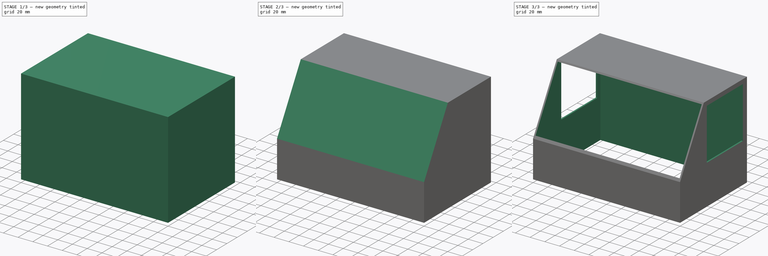
[diagram: build sequence overview — one tinted view per stage of 3, left to right]
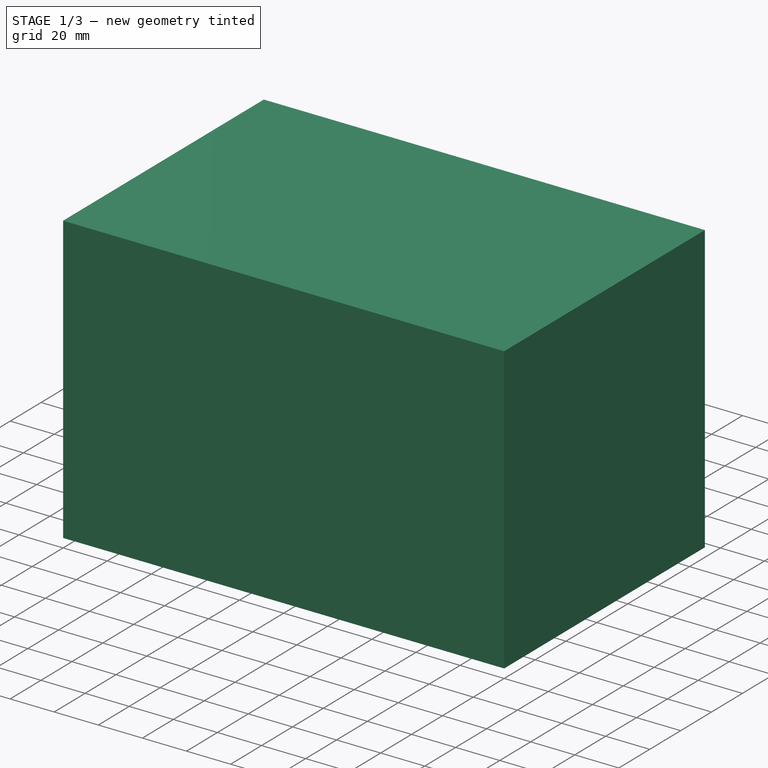
[diagram: stage 1 of 3 — iso view after this stage's code; geometry added in this stage tinted green]
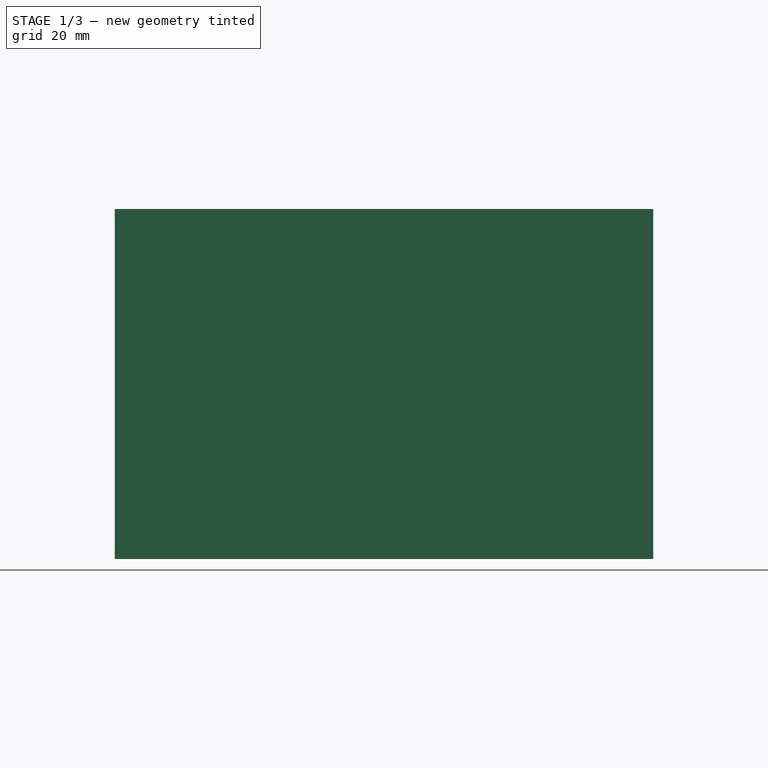
[diagram: stage 1 of 3 — front view after this stage's code; geometry added in this stage tinted green]
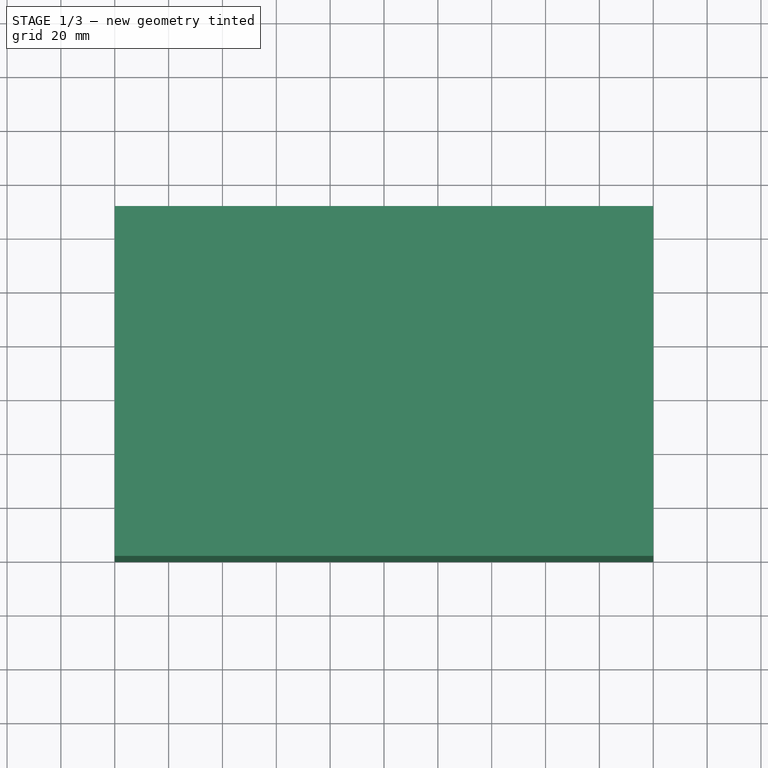
[diagram: stage 1 of 3 — top view after this stage's code; geometry added in this stage tinted green]
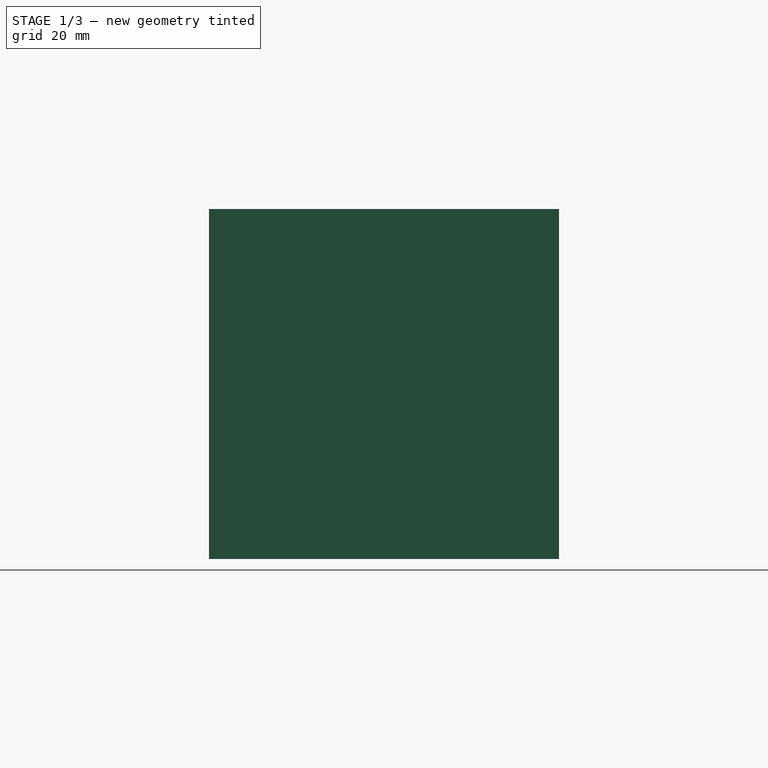
[diagram: stage 1 of 3 — right view after this stage's code; geometry added in this stage tinted green]
FCSTD DOCUMENT  (FreeCAD 0.18R16131 (Git))
Label: Fahrerkabine
License: All rights reserved
LicenseURL: http://en.wikipedia.org/wiki/All_rights_reserved
objects: PartDesign::SubtractiveBox×3, Spreadsheet::Sheet×1, Part::Box×1, PartDesign::FeatureBase×1, PartDesign::Body×1, App::Part×1, Sketcher::SketchObject×1
note: 10 computed .brp shape members not serialized (recipe doc carries the construction recipe); baked Part::Feature solids carry a one-line shape summary decoded from their .brp

FEATURE [Spreadsheet::Sheet] Spreadsheet
  cells = D1=Schlitze; A2=width; B2=130; D2=width; E2=3.1; A3=length; B3=200; D3=length; E3=20; A4=Height; B4=130
FEATURE [Part::Box] Box  label="Cube"
  AttacherType = Attacher::AttachEngine3D
  Height = 130
  Length = 200
  Width = 130
FEATURE [PartDesign::FeatureBase] BaseFeature
  BaseFeature = -> Box
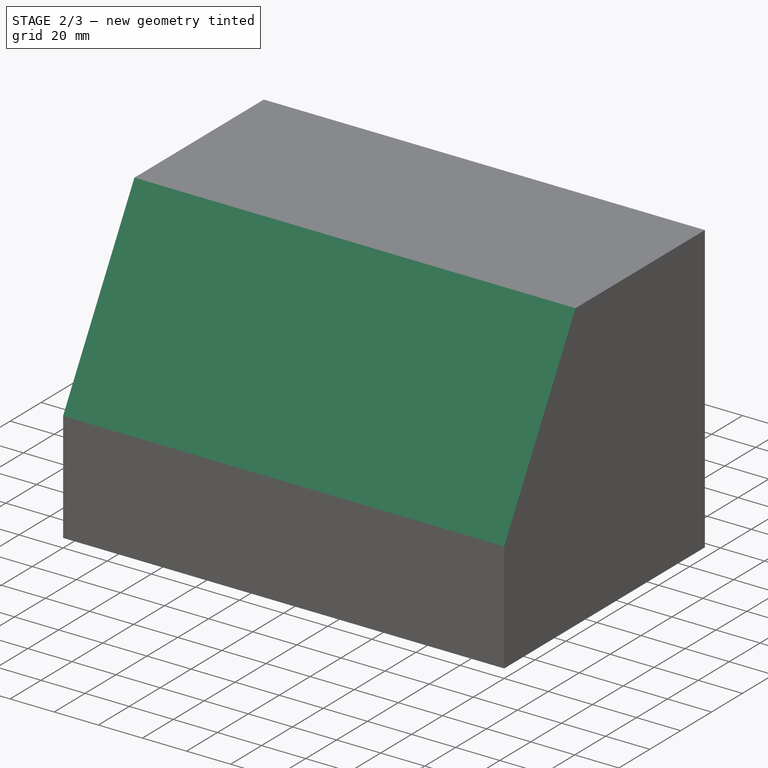
[diagram: stage 2 of 3 — iso view after this stage's code; geometry added in this stage tinted green]
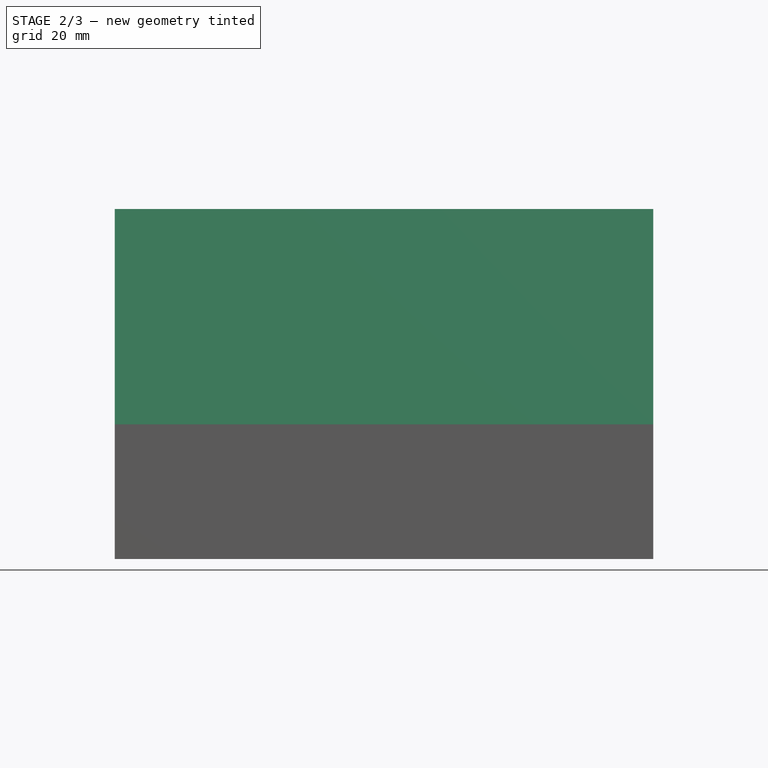
[diagram: stage 2 of 3 — front view after this stage's code; geometry added in this stage tinted green]
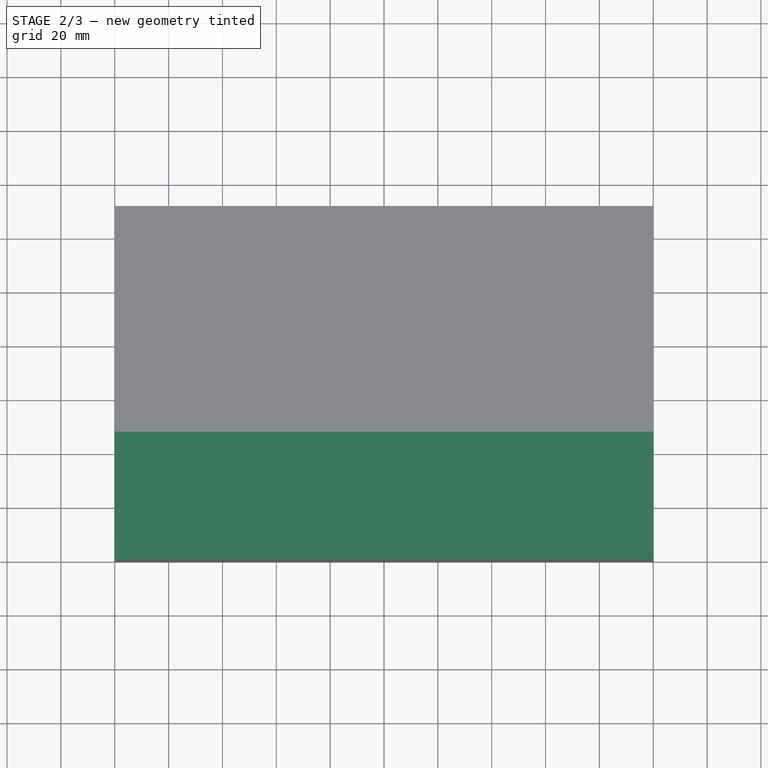
[diagram: stage 2 of 3 — top view after this stage's code; geometry added in this stage tinted green]
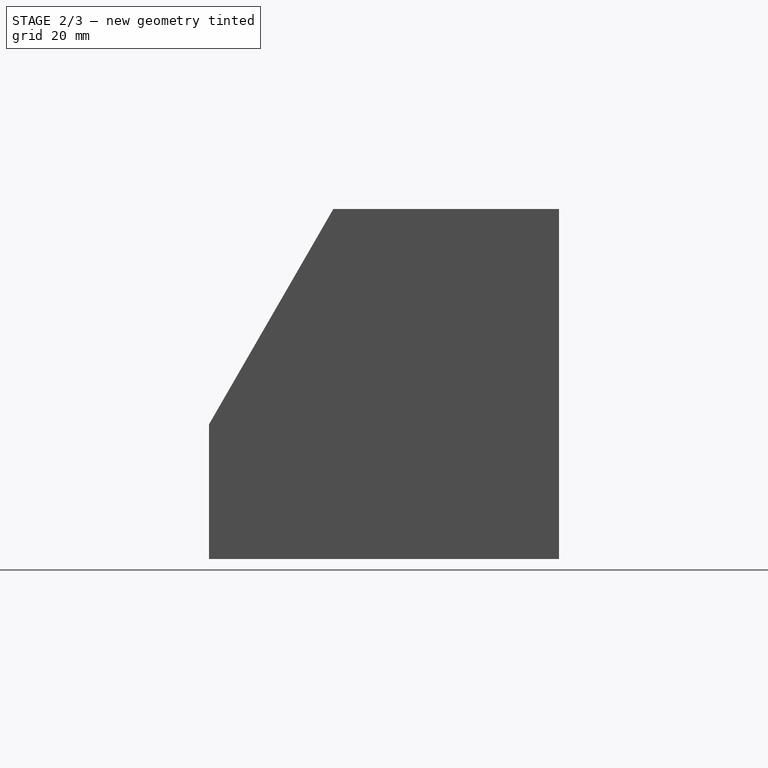
[diagram: stage 2 of 3 — right view after this stage's code; geometry added in this stage tinted green]
FEATURE [PartDesign::SubtractiveBox] Box001
  AttacherType = Attacher::AttachEngine3D
  AttachmentOffset = pos=(0,50,0) rot=(-1,0,0;0.523599rad)
  BaseFeature = -> BaseFeature
  Height = 40
  Length = 200
  MapMode = 5
  Placement = pos=(0,1.11e-14,50) rot=(1,0,0;1.0472rad)
  Support = -> [BaseFeature]
  Width = 150
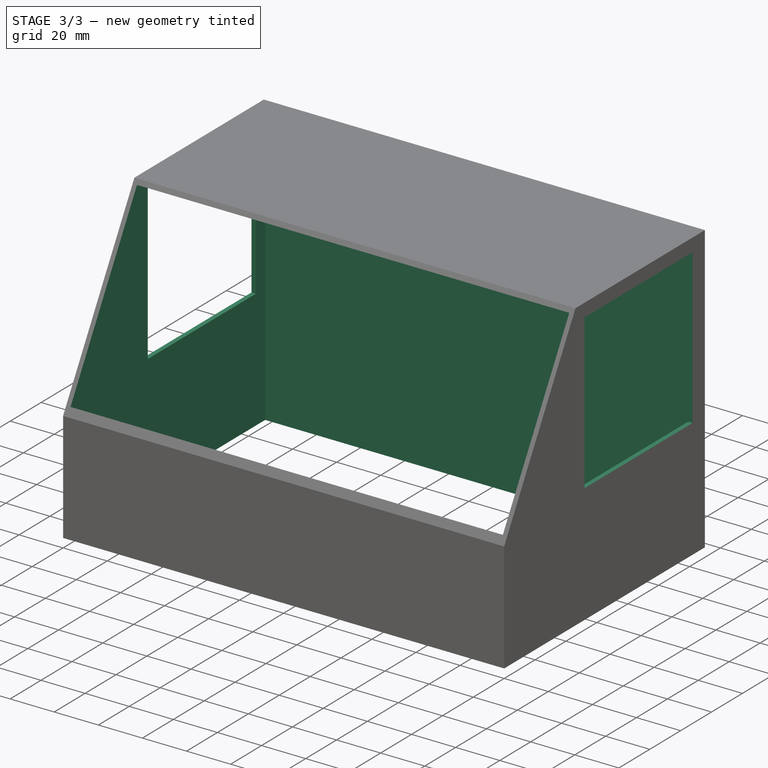
[diagram: stage 3 of 3 — iso view after this stage's code; geometry added in this stage tinted green]
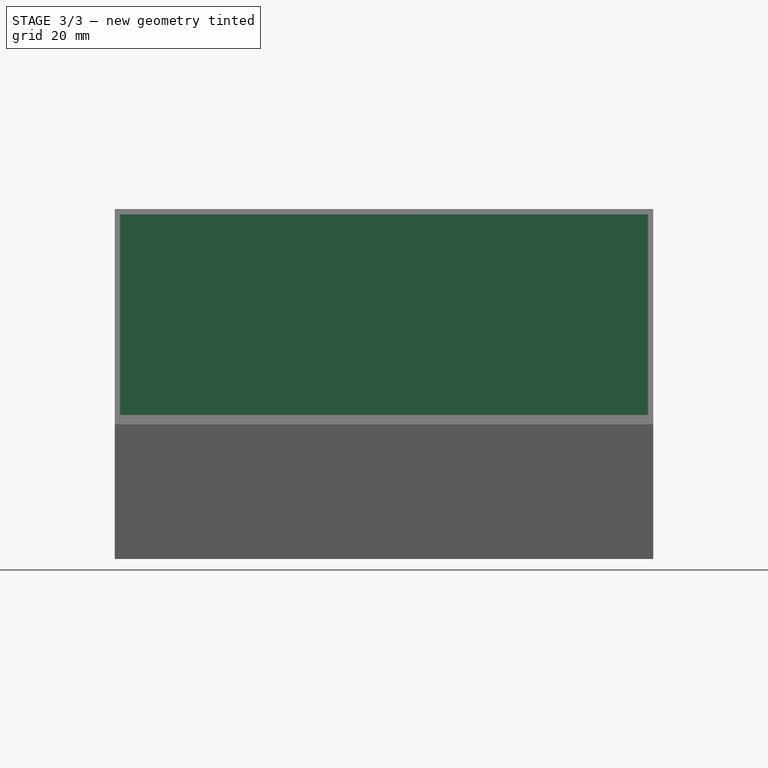
[diagram: stage 3 of 3 — front view after this stage's code; geometry added in this stage tinted green]
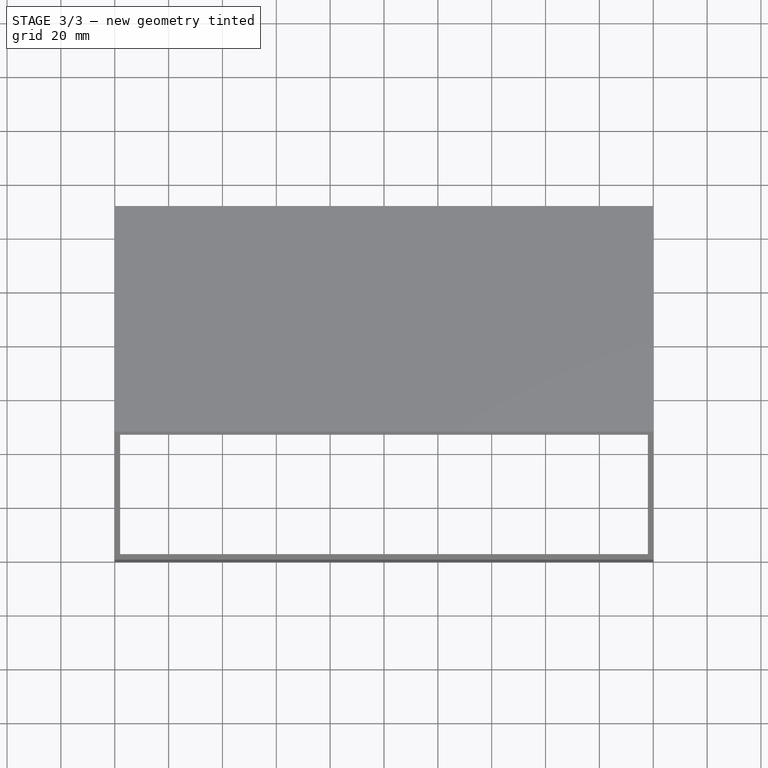
[diagram: stage 3 of 3 — top view after this stage's code; geometry added in this stage tinted green]
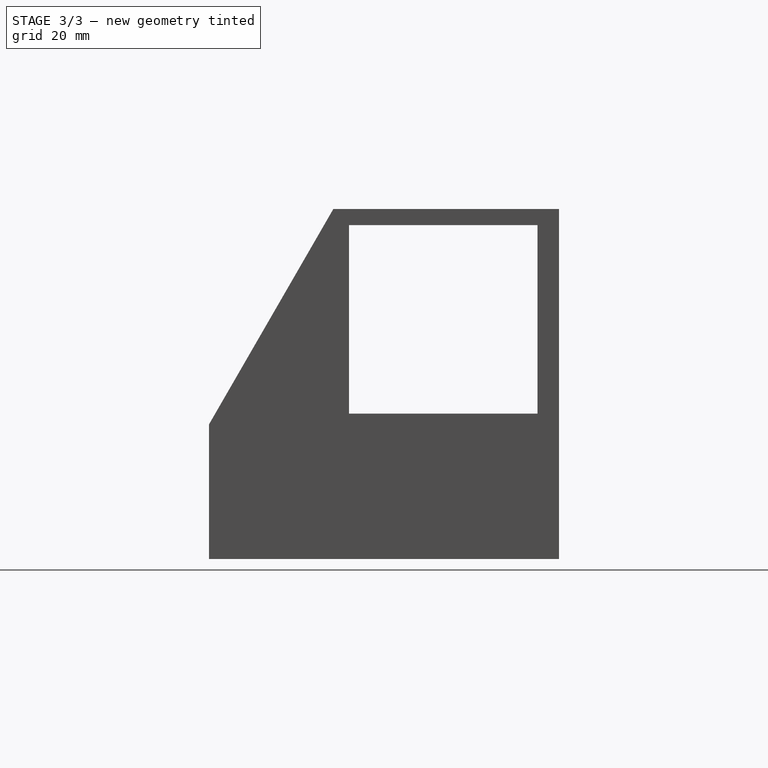
[diagram: stage 3 of 3 — right view after this stage's code; geometry added in this stage tinted green]
FEATURE [PartDesign::SubtractiveBox] Box002
  AttacherType = Attacher::AttachEngine3D
  AttachmentOffset = pos=(2,-128,-128) rot=(0,0,1;0rad)
  BaseFeature = -> Box001
  Height = 128
  Length = 196
  MapMode = 5
  Placement = pos=(2,128,128) rot=(1,0,0;3.14159rad)
  Support = -> [Box001]
  Width = 126
FEATURE [PartDesign::SubtractiveBox] Box003
  AttacherType = Attacher::AttachEngine3D
  AttachmentOffset = pos=(-76,4,-204) rot=(0,0,1;0rad)
  BaseFeature = -> Box002
  Height = 210
  Length = 70
  MapMode = 5
  Placement = pos=(204,52,124) rot=(-0.57735,-0.57735,0.57735;2.0944rad)
  Support = -> [Box002]
  Width = 70
FEATURE [PartDesign::Body] Body
  BaseFeature = -> Box
  Group = -> [BaseFeature,Box001,Box002,Box003]
  Origin = -> Origin001
  Tip = -> Box003
FEATURE [App::Part] Part
  Group = -> [Body]
  Origin = -> Origin
FEATURE [Sketcher::SketchObject] Sketch
  expr: Constraints[378] = Spreadsheet.E2
  expr: Constraints[235] = Spreadsheet.E2
  expr: Constraints[175] = Spreadsheet.E2
  expr: Constraints[209] = Spreadsheet.E2
  expr: Constraints[291] = Spreadsheet.E2
  expr: Constraints[237] = Spreadsheet.E3
  expr: Constraints[292] = Spreadsheet.E3
  expr: Constraints[107] = Spreadsheet.E2
  expr: Constraints[58] = Spreadsheet.E2
  expr: Constraints[140] = Spreadsheet.E2
  expr: Constraints[54] = Spreadsheet.E2
  sketch-geometry (176):
    g0: LineSegment StartX=-140 StartY=126.9 StartZ=0 EndX=-120 EndY=126.9 EndZ=0
    g1: LineSegment StartX=-120 StartY=126.9 StartZ=0 EndX=-120 EndY=130 EndZ=0
    g2: LineSegment StartX=-120 StartY=130 StartZ=0 EndX=-70 EndY=130 EndZ=0
    g3: LineSegment StartX=-70 StartY=130 StartZ=0 EndX=-70 EndY=126.9 EndZ=0
    g4: LineSegment StartX=-70 StartY=126.9 StartZ=0 EndX=-54.3982 EndY=126.9 EndZ=0
    g5: LineSegment StartX=-54.3982 StartY=126.9 StartZ=0 EndX=-10 EndY=50 EndZ=0
    g6: LineSegment StartX=-10 StartY=50 StartZ=0 EndX=-10 EndY=40 EndZ=0
    g7: LineSegment StartX=-10 StartY=40 StartZ=0 EndX=-13.1 EndY=40 EndZ=0
    g8: LineSegment StartX=-13.1 StartY=40 StartZ=0 EndX=-13.1 EndY=10 EndZ=0
    g9: LineSegment StartX=-13.1 StartY=10 StartZ=0 EndX=-10 EndY=10 EndZ=0
    g10: LineSegment StartX=-10 StartY=10 StartZ=0 EndX=-10 EndY=0 EndZ=0
    g11: LineSegment StartX=-10 StartY=0 StartZ=0 EndX=-50 EndY=0 EndZ=0
    g12: LineSegment StartX=-50 StartY=3.1 StartZ=0 EndX=-50 EndY=0 EndZ=0
    g13: LineSegment StartX=-50 StartY=3.1 StartZ=0 EndX=-100 EndY=3.1 EndZ=0
    g14: LineSegment StartX=-100 StartY=3.1 StartZ=0 EndX=-100 EndY=0 EndZ=0
    g15: LineSegment StartX=-100 StartY=0 StartZ=0 EndX=-140 EndY=0 EndZ=0
    g16: LineSegment StartX=-140 StartY=126.9 StartZ=0 EndX=-140 EndY=100 EndZ=0
    g17: LineSegment StartX=-140 StartY=100 StartZ=0 EndX=-136.9 EndY=100 EndZ=0
    g18: LineSegment StartX=-136.9 StartY=100 StartZ=0 EndX=-136.9 EndY=50 EndZ=0
    g19: LineSegment StartX=-136.9 StartY=50 StartZ=0 EndX=-140 EndY=50 EndZ=0
    g20: LineSegment StartX=-140 StartY=50 StartZ=0 EndX=-140 EndY=0 EndZ=0
    g21: LineSegment StartX=-125 StartY=116.9 StartZ=0 EndX=-125 EndY=10 EndZ=0
    g22: LineSegment StartX=-125 StartY=116.9 StartZ=0 EndX=-59.3982 EndY=116.9 EndZ=0
    g23: LineSegment StartX=-59.3982 StartY=116.9 StartZ=0 EndX=-59.3982 EndY=10 EndZ=0
    g24: LineSegment StartX=-125 StartY=10 StartZ=0 EndX=-59.3982 EndY=10 EndZ=0
    g25: LineSegment StartX=-54.3982 StartY=111.9 StartZ=0 EndX=-54.3982 EndY=55 EndZ=0
    g26: LineSegment StartX=-54.3982 StartY=55 StartZ=0 EndX=-21.547 EndY=55 EndZ=0
    g27: LineSegment StartX=-54.3982 StartY=111.9 StartZ=0 EndX=-21.547 EndY=55 EndZ=0
    g28: LineSegment StartX=-251.002 StartY=205.118 StartZ=0 EndX=-231.102 EndY=205.118 EndZ=0
    g29: LineSegment StartX=-231.102 StartY=205.118 StartZ=0 EndX=-231.102 EndY=202.018 EndZ=0
    g30: LineSegment StartX=-231.102 StartY=202.018 StartZ=0 EndX=-180.902 EndY=202.018 EndZ=0
    g31: LineSegment StartX=-180.902 StartY=202.018 StartZ=0 EndX=-180.902 EndY=205.118 EndZ=0
    g32: LineSegment StartX=-180.902 StartY=205.118 StartZ=0 EndX=-165.402 EndY=205.118 EndZ=0
    g33: LineSegment StartX=-165.402 StartY=205.118 StartZ=0 EndX=-165.402 EndY=5.11761 EndZ=0
    g34: LineSegment StartX=-165.402 StartY=5.11761 StartZ=0 EndX=-180.902 EndY=5.11761 EndZ=0
    g35: LineSegment StartX=-180.902 StartY=5.11761 StartZ=0 EndX=-180.902 EndY=8.21761 EndZ=0
    g36: LineSegment StartX=-180.902 StartY=8.21761 StartZ=0 EndX=-231.102 EndY=8.21761 EndZ=0
    g37: LineSegment StartX=-231.102 StartY=8.21761 StartZ=0 EndX=-231.102 EndY=5.11761 EndZ=0
    g38: LineSegment StartX=-231.102 StartY=5.11761 StartZ=0 EndX=-251.002 EndY=5.11761 EndZ=0
    g39: LineSegment StartX=-251.002 StartY=5.11761 StartZ=0 EndX=-251.002 EndY=205.118 EndZ=0
    g40: LineSegment StartX=-361.166 StartY=205.519 StartZ=0 EndX=-361.166 EndY=208.619 EndZ=0
    g41: LineSegment StartX=-361.166 StartY=208.619 StartZ=0 EndX=-311.366 EndY=208.619 EndZ=0
    g42: LineSegment StartX=-311.366 StartY=208.619 StartZ=0 EndX=-311.366 EndY=205.519 EndZ=0
    g43: LineSegment StartX=-311.366 StartY=205.519 StartZ=0 EndX=-261.266 EndY=205.519 EndZ=0
    g44: LineSegment StartX=-261.266 StartY=205.519 StartZ=0 EndX=-261.266 EndY=11.7189 EndZ=0
    g45: LineSegment StartX=-261.266 StartY=11.7189 StartZ=0 EndX=-311.366 EndY=11.7189 EndZ=0
    g46: LineSegment StartX=-311.366 StartY=11.7189 StartZ=0 EndX=-311.366 EndY=8.61887 EndZ=0
    g47: LineSegment StartX=-311.366 StartY=8.61887 StartZ=0 EndX=-361.166 EndY=8.61887 EndZ=0
    g48: LineSegment StartX=-361.166 StartY=8.61887 StartZ=0 EndX=-361.166 EndY=11.7189 EndZ=0
    g49: LineSegment StartX=-361.166 StartY=11.7189 StartZ=0 EndX=-388.166 EndY=11.7189 EndZ=0
    g50: LineSegment StartX=-388.166 StartY=11.7189 StartZ=0 EndX=-388.166 EndY=205.519 EndZ=0
    g51: LineSegment StartX=-388.166 StartY=205.519 StartZ=0 EndX=-361.166 EndY=205.519 EndZ=0
    g52: LineSegment StartX=-456.803 StartY=203.965 StartZ=0 EndX=-446.703 EndY=203.965 EndZ=0
    g53: LineSegment StartX=-446.703 StartY=203.965 StartZ=0 EndX=-446.703 EndY=207.065 EndZ=0
    g54: LineSegment StartX=-446.703 StartY=207.065 StartZ=0 EndX=-416.903 EndY=207.065 EndZ=0
    g55: LineSegment StartX=-416.903 StartY=207.065 StartZ=0 EndX=-416.903 EndY=203.965 EndZ=0
    g56: LineSegment StartX=-416.903 StartY=203.965 StartZ=0 EndX=-406.803 EndY=203.965 EndZ=0
    g57: LineSegment StartX=-406.803 StartY=203.965 StartZ=0 EndX=-406.803 EndY=10.1647 EndZ=0
    g58: LineSegment StartX=-406.803 StartY=10.1647 StartZ=0 EndX=-416.903 EndY=10.1647 EndZ=0
    g59: LineSegment StartX=-416.903 StartY=10.1647 StartZ=0 EndX=-416.903 EndY=7.0647 EndZ=0
    g60: LineSegment StartX=-416.903 StartY=7.0647 StartZ=0 EndX=-446.703 EndY=7.0647 EndZ=0
    g61: LineSegment StartX=-446.703 StartY=7.0647 StartZ=0 EndX=-446.703 EndY=10.1647 EndZ=0
    g62: LineSegment StartX=-446.703 StartY=10.1647 StartZ=0 EndX=-456.803 EndY=10.1647 EndZ=0
    g63: LineSegment StartX=-456.803 StartY=10.1647 StartZ=0 EndX=-456.803 EndY=203.965 EndZ=0
    g64: LineSegment StartX=-569.435 StartY=208.822 StartZ=0 EndX=-519.635 EndY=208.822 EndZ=0
    g65: LineSegment StartX=-519.635 StartY=208.822 StartZ=0 EndX=-519.635 EndY=205.722 EndZ=0
    g66: LineSegment StartX=-519.635 StartY=205.722 StartZ=0 EndX=-482.635 EndY=205.722 EndZ=0
    g67: LineSegment StartX=-482.635 StartY=205.722 StartZ=0 EndX=-482.635 EndY=11.9221 EndZ=0
    g68: LineSegment StartX=-482.635 StartY=11.9221 StartZ=0 EndX=-519.635 EndY=11.9221 EndZ=0
    g69: LineSegment StartX=-519.635 StartY=11.9221 StartZ=0 EndX=-519.635 EndY=8.82206 EndZ=0
    g70: LineSegment StartX=-519.635 StartY=8.82206 StartZ=0 EndX=-569.435 EndY=8.82206 EndZ=0
    g71: LineSegment StartX=-569.435 StartY=8.82206 StartZ=0 EndX=-569.435 EndY=11.9221 EndZ=0
    g72: LineSegment StartX=-569.435 StartY=11.9221 StartZ=0 EndX=-606.435 EndY=11.9221 EndZ=0
    g73: LineSegment StartX=-606.435 StartY=11.9221 StartZ=0 EndX=-606.435 EndY=205.722 EndZ=0
    g74: LineSegment StartX=-606.435 StartY=205.722 StartZ=0 EndX=-569.435 EndY=205.722 EndZ=0
    g75: LineSegment StartX=-569.435 StartY=208.822 StartZ=0 EndX=-569.435 EndY=205.722 EndZ=0
    g76: LineSegment StartX=-596.435 StartY=48.8221 StartZ=0 EndX=-596.435 EndY=28.8221 EndZ=0
    g77: LineSegment StartX=-596.435 StartY=48.8221 StartZ=0 EndX=-593.335 EndY=48.8221 EndZ=0
    g78: LineSegment StartX=-593.335 StartY=48.8221 StartZ=0 EndX=-593.335 EndY=28.8221 EndZ=0
    g79: LineSegment StartX=-596.435 StartY=28.8221 StartZ=0 EndX=-593.335 EndY=28.8221 EndZ=0
    g80: LineSegment StartX=-596.435 StartY=188.822 StartZ=0 EndX=-596.435 EndY=168.822 EndZ=0
    g81: LineSegment StartX=-596.435 StartY=188.822 StartZ=0 EndX=-593.335 EndY=188.822 EndZ=0
    g82: LineSegment StartX=-593.335 StartY=188.822 StartZ=0 EndX=-593.335 EndY=168.822 EndZ=0
    g83: LineSegment StartX=-596.435 StartY=168.822 StartZ=0 EndX=-593.335 EndY=168.822 EndZ=0
    g84: LineSegment StartX=-536.435 StartY=48.8221 StartZ=0 EndX=-533.335 EndY=48.8221 EndZ=0
    g85: LineSegment StartX=-533.335 StartY=48.8221 StartZ=0 EndX=-533.335 EndY=28.8221 EndZ=0
    g86: LineSegment StartX=-536.435 StartY=48.8221 StartZ=0 EndX=-536.435 EndY=28.8221 EndZ=0
    g87: LineSegment StartX=-536.435 StartY=28.8221 StartZ=0 EndX=-533.335 EndY=28.8221 EndZ=0
    g88: LineSegment StartX=-506.435 StartY=48.8221 StartZ=0 EndX=-503.335 EndY=48.8221 EndZ=0
    g89: LineSegment StartX=-506.435 StartY=48.8221 StartZ=0 EndX=-506.435 EndY=28.8221 EndZ=0
    g90: LineSegment StartX=-503.335 StartY=48.8221 StartZ=0 EndX=-503.335 EndY=28.8221 EndZ=0
    g91: LineSegment StartX=-506.435 StartY=28.8221 StartZ=0 EndX=-503.335 EndY=28.8221 EndZ=0
    g92: LineSegment StartX=-566.435 StartY=188.822 StartZ=0 EndX=-566.435 EndY=168.822 EndZ=0
    g93: LineSegment StartX=-566.435 StartY=188.822 StartZ=0 EndX=-563.335 EndY=188.822 EndZ=0
    g94: LineSegment StartX=-563.335 StartY=188.822 StartZ=0 EndX=-563.335 EndY=168.822 EndZ=0
    g95: LineSegment StartX=-566.435 StartY=168.822 StartZ=0 EndX=-563.335 EndY=168.822 EndZ=0
    g96: LineSegment StartX=-536.435 StartY=188.822 StartZ=0 EndX=-536.435 EndY=168.822 EndZ=0
    g97: LineSegment StartX=-533.335 StartY=188.822 StartZ=0 EndX=-533.335 EndY=168.822 EndZ=0
    g98: LineSegment StartX=-506.435 StartY=188.822 StartZ=0 EndX=-506.435 EndY=168.822 EndZ=0
    g99: LineSegment StartX=-506.435 StartY=188.822 StartZ=0 EndX=-503.335 EndY=188.822 EndZ=0
    g100: LineSegment StartX=-503.335 StartY=188.822 StartZ=0 EndX=-503.335 EndY=168.822 EndZ=0
    g101: LineSegment StartX=-506.435 StartY=168.822 StartZ=0 EndX=-503.335 EndY=168.822 EndZ=0
    g102: LineSegment StartX=-536.435 StartY=168.822 StartZ=0 EndX=-533.335 EndY=168.822 EndZ=0
    g103: LineSegment StartX=-536.435 StartY=188.822 StartZ=0 EndX=-533.335 EndY=188.822 EndZ=0
    g104: LineSegment StartX=-566.435 StartY=48.8221 StartZ=0 EndX=-566.435 EndY=28.8221 EndZ=0
    g105: LineSegment StartX=-566.435 StartY=48.8221 StartZ=0 EndX=-563.335 EndY=48.8221 EndZ=0
    g106: LineSegment StartX=-563.335 StartY=48.8221 StartZ=0 EndX=-563.335 EndY=28.8221 EndZ=0
    g107: LineSegment StartX=-566.435 StartY=28.8221 StartZ=0 EndX=-563.335 EndY=28.8221 EndZ=0
    g108: Circle CenterX=-587.335 CenterY=82.8221 CenterZ=0 NormalX=0 NormalY=0 NormalZ=1 AngleXU=0 Radius=15
    g109: Circle CenterX=-431.803 CenterY=178.965 CenterZ=0 NormalX=0 NormalY=0 NormalZ=1 AngleXU=0 Radius=10
    g110: Circle CenterX=-286.266 CenterY=180.519 CenterZ=0 NormalX=0 NormalY=0 NormalZ=1 AngleXU=0 Radius=10
    g111: LineSegment StartX=-221.502 StartY=113.118 StartZ=0 EndX=-190.402 EndY=113.118 EndZ=0
    g112: LineSegment StartX=-221.502 StartY=96.6176 StartZ=0 EndX=-190.402 EndY=96.6176 EndZ=0
    g113: LineSegment StartX=-190.402 StartY=113.118 StartZ=0 EndX=-190.402 EndY=96.6176 EndZ=0
    g114: LineSegment StartX=-221.502 StartY=113.118 StartZ=0 EndX=-221.502 EndY=96.6176 EndZ=0
    g115: Circle CenterX=-186.402 CenterY=109.118 CenterZ=0 NormalX=0 NormalY=0 NormalZ=1 AngleXU=0 Radius=1.5
    g116: Circle CenterX=-225.502 CenterY=109.118 CenterZ=0 NormalX=0 NormalY=0 NormalZ=1 AngleXU=0 Radius=1.5
    g117: Circle CenterX=-186.402 CenterY=100.618 CenterZ=0 NormalX=0 NormalY=0 NormalZ=1 AngleXU=0 Radius=1.5
    g118: Circle CenterX=-225.502 CenterY=100.618 CenterZ=0 NormalX=0 NormalY=0 NormalZ=1 AngleXU=0 Radius=1.5
    g119: Circle CenterX=-206.002 CenterY=143.118 CenterZ=0 NormalX=0 NormalY=0 NormalZ=1 AngleXU=0 Radius=10
    g120: Circle CenterX=-206.002 CenterY=66.6176 CenterZ=0 NormalX=0 NormalY=0 NormalZ=1 AngleXU=0 Radius=10
    g121: LineSegment StartX=-106.079 StartY=185.3 StartZ=0 EndX=-106.079 EndY=182.2 EndZ=0
    g122: LineSegment StartX=-116.079 StartY=182.2 StartZ=0 EndX=-106.079 EndY=182.2 EndZ=0
    g123: LineSegment StartX=-106.079 StartY=185.3 StartZ=0 EndX=-86.1787 EndY=185.3 EndZ=0
    g124: LineSegment StartX=-86.1787 StartY=185.3 StartZ=0 EndX=-86.1787 EndY=182.2 EndZ=0
    g125: LineSegment StartX=-86.1787 StartY=182.2 StartZ=0 EndX=-76.1787 EndY=182.2 EndZ=0
    g126: LineSegment StartX=-116.079 StartY=182.2 StartZ=0 EndX=-116.079 EndY=172.2 EndZ=0
    g127: LineSegment StartX=-116.079 StartY=172.2 StartZ=0 EndX=-106.079 EndY=172.2 EndZ=0
    g128: LineSegment StartX=-106.079 StartY=172.2 StartZ=0 EndX=-106.079 EndY=159.2 EndZ=0
    g129: LineSegment StartX=-106.079 StartY=159.2 StartZ=0 EndX=-86.1787 EndY=159.2 EndZ=0
    g130: LineSegment StartX=-86.1787 StartY=159.2 StartZ=0 EndX=-86.1787 EndY=172.2 EndZ=0
    g131: LineSegment StartX=-86.1787 StartY=172.2 StartZ=0 EndX=-76.1787 EndY=172.2 EndZ=0
    g132: LineSegment StartX=-76.1787 StartY=182.2 StartZ=0 EndX=-76.1787 EndY=172.2 EndZ=0
    g133: Circle CenterX=-102.079 CenterY=167.6 CenterZ=0 NormalX=0 NormalY=0 NormalZ=1 AngleXU=0 Radius=1.6
    g134: Circle CenterX=-90.1787 CenterY=167.6 CenterZ=0 NormalX=0 NormalY=0 NormalZ=1 AngleXU=0 Radius=1.6
    g135: LineSegment StartX=-121.438 StartY=349.624 StartZ=0 EndX=-121.438 EndY=243.624 EndZ=0
    g136: LineSegment StartX=-121.438 StartY=349.624 StartZ=0 EndX=-57.4378 EndY=349.624 EndZ=0
    g137: LineSegment StartX=-57.4378 StartY=349.624 StartZ=0 EndX=-57.4378 EndY=243.624 EndZ=0
    g138: LineSegment StartX=-121.438 StartY=243.624 StartZ=0 EndX=-57.4378 EndY=243.624 EndZ=0
    g139: LineSegment StartX=-116.438 StartY=344.624 StartZ=0 EndX=-116.438 EndY=287.724 EndZ=0
    g140: LineSegment StartX=-116.438 StartY=287.724 StartZ=0 EndX=-62.4378 EndY=287.724 EndZ=0
    g141: LineSegment StartX=-62.4378 StartY=287.724 StartZ=0 EndX=-62.4378 EndY=344.624 EndZ=0
    g142: LineSegment StartX=-62.4378 StartY=344.624 StartZ=0 EndX=-116.438 EndY=344.624 EndZ=0
    g143: LineSegment StartX=-761.315 StartY=207.301 StartZ=0 EndX=-634.315 EndY=207.301 EndZ=0
    g144: LineSegment StartX=-634.315 StartY=207.301 StartZ=0 EndX=-634.315 EndY=14.3007 EndZ=0
    g145: LineSegment StartX=-634.315 StartY=14.3007 StartZ=0 EndX=-761.315 EndY=14.3007 EndZ=0
    g146: LineSegment StartX=-761.315 StartY=14.3007 StartZ=0 EndX=-761.315 EndY=44.3007 EndZ=0
    g147: LineSegment StartX=-761.315 StartY=44.3007 StartZ=0 EndX=-771.315 EndY=44.3007 EndZ=0
    g148: LineSegment StartX=-771.315 StartY=44.3007 StartZ=0 EndX=-771.315 EndY=74.3007 EndZ=0
    g149: LineSegment StartX=-771.315 StartY=74.3007 StartZ=0 EndX=-761.315 EndY=74.3007 EndZ=0
    g150: LineSegment StartX=-761.315 StartY=74.3007 StartZ=0 EndX=-761.315 EndY=147.301 EndZ=0
    g151: LineSegment StartX=-761.315 StartY=147.301 StartZ=0 EndX=-771.315 EndY=147.301 EndZ=0
    g152: LineSegment StartX=-771.315 StartY=147.301 StartZ=0 EndX=-771.315 EndY=177.301 EndZ=0
    g153: LineSegment StartX=-771.315 StartY=177.301 StartZ=0 EndX=-761.315 EndY=177.301 EndZ=0
    g154: LineSegment StartX=-761.315 StartY=177.301 StartZ=0 EndX=-761.315 EndY=207.301 EndZ=0
    g155: LineSegment StartX=-640.515 StartY=197.301 StartZ=0 EndX=-640.515 EndY=177.301 EndZ=0
    g156: LineSegment StartX=-640.515 StartY=177.301 StartZ=0 EndX=-637.415 EndY=177.301 EndZ=0
    g157: LineSegment StartX=-637.415 StartY=177.301 StartZ=0 EndX=-637.415 EndY=197.301 EndZ=0
    g158: LineSegment StartX=-640.515 StartY=197.301 StartZ=0 EndX=-637.415 EndY=197.301 EndZ=0
    g159: LineSegment StartX=-640.515 StartY=44.3007 StartZ=0 EndX=-637.415 EndY=44.3007 EndZ=0
    g160: LineSegment StartX=-637.415 StartY=44.3007 StartZ=0 EndX=-637.415 EndY=24.3007 EndZ=0
    g161: LineSegment StartX=-637.415 StartY=24.3007 StartZ=0 EndX=-640.515 EndY=24.3007 EndZ=0
    g162: LineSegment StartX=-640.515 StartY=24.3007 StartZ=0 EndX=-640.515 EndY=44.3007 EndZ=0
    g163: Circle CenterX=-765.915 CenterY=172.301 CenterZ=0 NormalX=0 NormalY=0 NormalZ=1 AngleXU=0 Radius=1.6
    g164: Circle CenterX=-765.915 CenterY=152.301 CenterZ=0 NormalX=0 NormalY=0 NormalZ=1 AngleXU=0 Radius=1.6
    g165: Circle CenterX=-765.915 CenterY=49.3007 CenterZ=0 NormalX=0 NormalY=0 NormalZ=1 AngleXU=0 Radius=1.6
    g166: Circle CenterX=-765.915 CenterY=69.3007 CenterZ=0 NormalX=0 NormalY=0 NormalZ=1 AngleXU=0 Radius=1.6
    g167: Circle CenterX=-741.315 CenterY=107.301 CenterZ=0 NormalX=0 NormalY=0 NormalZ=1 AngleXU=0 Radius=10
    g168: LineSegment StartX=-803.445 StartY=76.6131 StartZ=0 EndX=-803.445 EndY=46.7131 EndZ=0
    g169: LineSegment StartX=-803.445 StartY=76.6131 StartZ=0 EndX=-798.445 EndY=76.6131 EndZ=0
    g170: LineSegment StartX=-798.445 StartY=76.6131 StartZ=0 EndX=-798.445 EndY=71.6131 EndZ=0
    g171: LineSegment StartX=-798.445 StartY=71.6131 StartZ=0 EndX=-795.445 EndY=71.6131 EndZ=0
    g172: LineSegment StartX=-795.445 StartY=71.6131 StartZ=0 EndX=-795.445 EndY=51.7131 EndZ=0
    g173: LineSegment StartX=-795.445 StartY=51.7131 StartZ=0 EndX=-798.445 EndY=51.7131 EndZ=0
    g174: LineSegment StartX=-798.445 StartY=51.7131 StartZ=0 EndX=-798.445 EndY=46.7131 EndZ=0
    g175: LineSegment StartX=-798.445 StartY=46.7131 StartZ=0 EndX=-803.445 EndY=46.7131 EndZ=0
  constraints (512):
    c: Coincident(g0,g1)
    c: Coincident(g1,g2)
    c: Coincident(g2,g3)
    c: Coincident(g3,g4)
    c: Coincident(g4,g5)
    c: Coincident(g5,g6)
    c: Coincident(g6,g7)
    c: Coincident(g7,g8)
    c: Coincident(g8,g9)
    c: Coincident(g9,g10)
    c: Coincident(g10,g11)
    c: Coincident(g11,g12)
    c: Coincident(g12,g13)
    c: Coincident(g13,g14)
    c: Coincident(g14,g15)
    c: Coincident(g15,g20)
    c: Coincident(g20,g19)
    c: Coincident(g19,g18)
    c: Coincident(g18,g17)
    c: Coincident(g17,g16)
    c: Coincident(g16,g0)
    c: Coincident(g21,g22)
    c: Coincident(g22,g23)
    c: Coincident(g23,g24)
    c: Coincident(g24,g21)
    c: Coincident(g25,g26)
    c: Coincident(g26,g27)
    c: Coincident(g27,g25)
    c: Perpendicular(g0,g1)
    c: Angle(g2) = 0
    c: Perpendicular(g2,g1)
    c: Perpendicular(g3,g2)
    c: Perpendicular(g3,g4)
    c: Perpendicular(g16,g0)
    c: Perpendicular(g17,g16)
    c: Perpendicular(g18,g17)
    c: Perpendicular(g18,g19)
    c: Perpendicular(g20,g19)
    c: Perpendicular(g15,g20)
    c: Perpendicular(g14,g15)
    c: Perpendicular(g14,g13)
    c: Perpendicular(g13,g12)
    c: Perpendicular(g11,g12)
    c: Perpendicular(g10,g11)
    c: Perpendicular(g9,g10)
    c: Perpendicular(g8,g9)
    c: Perpendicular(g7,g8)
    c: Perpendicular(g6,g7)
    c: Perpendicular(g21,g24)
    c: Perpendicular(g23,g24)
    c: Perpendicular(g22,g23)
    c: Angle(g24) = 0
    c: Perpendicular(g25,g26)
    c: Angle(g26) = 0
    c: DistanceY(g14,g14) = 3.1
    c: Equal(g12,g14)
    c: Equal(g14,g1)
    c: Equal(g1,g3)
    c: DistanceX(g19,g19) = 3.1
    c: Equal(g19,g17)
    c: Equal(g17,g7)
    c: Equal(g7,g9)
    c: DistanceY(g15,g1) = 130
    c: DistanceY(g15) = 0
    c: DistanceX(g15,g10) = 130
    c: Angle(g5,g6) = 2.61799
    c: Angle(g27,g26) = 1.0472
    c: DistanceY(g18,g18) = 50
    c: DistanceY(g20,g20) = 50
    c: DistanceY(g10,g5) = 50
    c: DistanceX(g10,g-1) = 10
    c: DistanceY(g8,g8) = 30
    c: DistanceY(g10,g10) = 10
    c: DistanceX(g2,g2) = 50
    c: DistanceX(g0,g0) = 20
    c: DistanceX(g13,g13) = 50
    c: DistanceX(g15,g15) = 40
    c: DistanceY(g21,g0) = 10
    c: DistanceX(g0,g21) = 15
    c: DistanceX(g22,g4) = 5
    c: DistanceX(g4,g25) = 0
    c: DistanceY(g5,g26) = 5
    c: DistanceY(g15,g21) = 10
    c: Angle(g38) = 3.14159
    c: Parallel(g38,g34)
    c: Parallel(g34,g36)
    c: Parallel(g36,g28)
    c: Parallel(g28,g30)
    c: Parallel(g30,g32)
    c: Perpendicular(g39,g38)
    c: Parallel(g39,g37)
    c: Parallel(g37,g35)
    c: Parallel(g35,g33)
    c: Parallel(g33,g31)
    c: Parallel(g31,g29)
    c: Coincident(g39,g38)
    c: Coincident(g38,g37)
    c: Coincident(g37,g36)
    c: Coincident(g36,g35)
    c: Coincident(g35,g34)
    c: Coincident(g34,g33)
    c: Coincident(g33,g32)
    c: Coincident(g32,g31)
    c: Coincident(g31,g30)
    c: Coincident(g30,g29)
    c: Coincident(g29,g28)
    c: Coincident(g28,g39)
    c: DistanceY(g37,g37) = 3.1
    c: Equal(g37,g35)
    c: Equal(g35,g29)
    c: Equal(g29,g31)
    c: DistanceX(g36,g36) = 50.2
    c: DistanceY(g39,g39) = 200
    c: DistanceX(g28,g28) = 19.9
    c: Equal(g28,g38)
    c: Equal(g36,g30)
    c: DistanceX(g28,g32) = 85.6
    c: Angle(g47) = 3.14159
    c: Perpendicular(g48,g47)
    c: Parallel(g48,g46)
    c: Parallel(g46,g44)
    c: Parallel(g44,g50)
    c: Parallel(g50,g40)
    c: Parallel(g47,g49)
    c: Parallel(g49,g45)
    c: Parallel(g45,g43)
    c: Parallel(g43,g41)
    c: Parallel(g41,g51)
    c: Coincident(g50,g49)
    c: Coincident(g49,g48)
    c: Coincident(g48,g47)
    c: Coincident(g47,g46)
    c: Coincident(g46,g45)
    c: Coincident(g45,g44)
    c: Coincident(g44,g43)
    c: Coincident(g43,g42)
    c: Coincident(g42,g41)
    c: Coincident(g41,g40)
    c: Coincident(g40,g51)
    c: Coincident(g51,g50)
    c: DistanceY(g48,g48) = 3.1
    c: Equal(g48,g46)
    c: Equal(g46,g40)
    c: Equal(g40,g42)
    c: DistanceY(g47,g40) = 200
    c: DistanceX(g47,g47) = 49.8
    c: Equal(g47,g41)
    c: DistanceX(g45,g45) = 50.1
    c: Equal(g45,g43)
    c: DistanceX(g50,g40) = 27
    c: Equal(g51,g49)
    c: Angle(g60) = 3.14159
    c: Perpendicular(g61,g60)
    c: Parallel(g60,g62)
    c: Parallel(g62,g58)
    c: Parallel(g58,g56)
    c: Parallel(g56,g52)
    c: Parallel(g52,g54)
    c: Parallel(g63,g61)
    c: Parallel(g61,g59)
    c: Parallel(g59,g57)
    c: Parallel(g57,g53)
    c: Parallel(g53,g55)
    c: Coincident(g63,g62)
    c: Coincident(g62,g61)
    c: Coincident(g61,g60)
    c: Coincident(g60,g59)
    c: Coincident(g59,g58)
    c: Coincident(g58,g57)
    c: Coincident(g57,g56)
    c: Coincident(g55,g56)
    c: Coincident(g55,g54)
    c: Coincident(g54,g53)
    c: Coincident(g53,g52)
    c: Coincident(g52,g63)
    c: DistanceY(g61,g61) = 3.1
    c: Equal(g61,g59)
    c: Equal(g59,g53)
    c: Equal(g53,g55)
    c: DistanceY(g60,g53) = 200
    c: DistanceX(g62,g57) = 50
    c: DistanceX(g60,g60) = 29.8
    c: Equal(g60,g54)
    c: DistanceX(g52,g52) = 10.1
    c: Equal(g52,g62)
    c: Angle(g70) = 3.14159
    c: Perpendicular(g71,g70)
    c: Parallel(g71,g69)
    c: Parallel(g69,g67)
    c: Parallel(g67,g73)
    c: Parallel(g73,g75)
    c: Parallel(g75,g65)
    c: Parallel(g70,g72)
    c: Parallel(g72,g68)
    c: Parallel(g68,g66)
    c: Parallel(g66,g64)
    c: Parallel(g64,g74)
    c: Coincident(g72,g71)
    c: Coincident(g71,g70)
    c: Coincident(g70,g69)
    c: Coincident(g69,g68)
    c: Coincident(g68,g67)
    c: Coincident(g67,g66)
    c: Coincident(g66,g65)
    c: Coincident(g65,g64)
    c: Coincident(g64,g75)
    c: Coincident(g75,g74)
    c: Coincident(g74,g73)
    c: Coincident(g73,g72)
    c: DistanceY(g71,g71) = 3.1
    c: Equal(g71,g69)
    c: Equal(g69,g75)
    c: Equal(g75,g65)
    c: DistanceY(g70,g64) = 200
    c: DistanceX(g70,g70) = 49.8
    c: Equal(g70,g64)
    c: DistanceX(g72,g72) = 37
    c: Equal(g72,g74)
    c: DistanceX(g68,g68) = 37
    c: Parallel(g79,g72)
    c: Parallel(g76,g73)
    c: Coincident(g79,g76)
    c: Coincident(g79,g78)
    c: Coincident(g78,g77)
    c: Coincident(g77,g76)
    c: Parallel(g76,g78)
    c: Parallel(g78,g80)
    c: Parallel(g80,g82)
    c: Parallel(g79,g77)
    c: Parallel(g77,g83)
    c: Parallel(g83,g81)
    c: Coincident(g83,g80)
    c: Coincident(g83,g82)
    c: Coincident(g80,g81)
    c: Coincident(g82,g81)
    c: DistanceX(g79,g79) = 3.1
    c: Equal(g83,g79)
    c: DistanceY(g76,g76) = 20
    c: Equal(g76,g80)
    c: DistanceY(g70,g76) = 20
    c: DistanceX(g72,g76) = 10
    c: DistanceY(g80,g64) = 20
    c: DistanceX(g73,g80) = 10
    c: Parallel(g86,g85)
    c: Parallel(g85,g89)
    c: Parallel(g89,g90)
    c: Parallel(g90,g100)
    c: Parallel(g100,g98)
    c: Parallel(g98,g97)
    c: Parallel(g97,g96)
    c: Parallel(g96,g94)
    c: Parallel(g94,g92)
    c: Parallel(g95,g93)
    c: Parallel(g101,g87)
    c: Parallel(g87,g91)
    c: Parallel(g91,g84)
    c: Parallel(g84,g88)
    c: Coincident(g87,g86)
    c: Coincident(g85,g87)
    c: Coincident(g86,g84)
    c: Coincident(g85,g84)
    c: Coincident(g89,g88)
    c: Coincident(g89,g91)
    c: Coincident(g91,g90)
    c: Coincident(g90,g88)
    c: Coincident(g101,g100)
    c: Coincident(g100,g99)
    c: Coincident(g99,g98)
    c: Coincident(g98,g101)
    c: Perpendicular(g85,g87)
    c: Parallel(g103,g102)
    c: Parallel(g102,g88)
    c: Parallel(g88,g99)
    c: Coincident(g102,g97)
    c: Coincident(g102,g96)
    c: Coincident(g96,g103)
    c: Coincident(g103,g97)
    c: Coincident(g94,g93)
    c: Coincident(g93,g92)
    c: Coincident(g92,g95)
    c: Coincident(g94,g95)
    c: Parallel(g93,g79)
    c: Parallel(g79,g107)
    c: Parallel(g107,g105)
    c: Parallel(g104,g106)
    c: Parallel(g106,g86)
    c: Coincident(g104,g105)
    c: Coincident(g105,g106)
    c: Coincident(g107,g106)
    c: Coincident(g107,g104)
    c: Perpendicular(g79,g104)
    c: DistanceX(g107,g107) = 3.1
    c: DistanceY(g104,g104) = 20
    c: Equal(g107,g87)
    c: Equal(g87,g91)
    c: Equal(g91,g101)
    c: Equal(g101,g102)
    c: Equal(g102,g95)
    c: Equal(g104,g86)
    c: Equal(g86,g89)
    c: Equal(g89,g98)
    c: Equal(g98,g96)
    c: Equal(g96,g92)
    c: DistanceX(g80,g92) = 30
    c: DistanceY(g80,g92) = 0
    c: DistanceY(g96,g92) = 0
    c: DistanceY(g96,g98) = 0
    c: DistanceX(g92,g96) = 30
    c: DistanceX(g96,g98) = 30
    c: DistanceY(g76,g104) = 0
    c: DistanceY(g86,g104) = 0
    c: DistanceY(g86,g89) = 0
    c: DistanceX(g76,g104) = 30
    c: DistanceX(g104,g86) = 30
    c: DistanceX(g86,g89) = 30
    c: DistanceY(g77,g108) = 34
    c: DistanceX(g77,g108) = 6
    c: Radius(g108) = 15
    c: Radius(g109) = 10
    c: DistanceX(g109,g56) = 25
    c: DistanceY(g109,g55) = 25
    c: Radius(g110) = 10
    c: DistanceY(g110,g43) = 25
    c: DistanceX(g110,g43) = 25
    c: Parallel(g39,g114)
    c: Parallel(g114,g113)
    c: Perpendicular(g114,g111)
    c: Parallel(g111,g112)
    c: Coincident(g114,g111)
    c: Coincident(g114,g112)
    c: Coincident(g112,g113)
    c: Coincident(g111,g113)
    c: DistanceX(g111,g111) = 31.1
    c: DistanceY(g113,g113) = 16.5
    c: DistanceX(g111,g32) = 25
    c: DistanceY(g111,g32) = 92
    c: Radius(g117) = 1.5
    c: Equal(g117,g115)
    c: Equal(g115,g116)
    c: Equal(g116,g118)
    c: DistanceX(g118,g116) = 0
    c: DistanceX(g118,g112) = 4
    c: DistanceX(g117,g115) = 0
    c: DistanceX(g112,g117) = 4
    c: DistanceY(g112,g118) = 4
    c: DistanceY(g112,g117) = 4
    c: DistanceY(g116,g111) = 4
    c: DistanceY(g115,g111) = 4
    c: Radius(g120) = 10
    c: Equal(g120,g119)
    c: DistanceY(g111,g119) = 30
    c: DistanceY(g120,g112) = 30
    c: DistanceX(g112,g120) = 15.5
    c: DistanceX(g111,g119) = 15.5
    c: Angle(g132) = -1.5708
    c: Perpendicular(g125,g132)
    c: Parallel(g132,g124)
    c: Parallel(g124,g130)
    c: Parallel(g130,g128)
    c: Parallel(g128,g126)
    c: Parallel(g126,g121)
    c: Parallel(g125,g131)
    c: Parallel(g131,g129)
    c: Parallel(g129,g123)
    c: Parallel(g123,g122)
    c: Parallel(g122,g127)
    c: Coincident(g132,g131)
    c: Coincident(g131,g130)
    c: Coincident(g130,g129)
    c: Coincident(g129,g128)
    c: Coincident(g128,g127)
    c: Coincident(g127,g126)
    c: Coincident(g126,g122)
    c: Coincident(g122,g121)
    c: Coincident(g121,g123)
    c: Coincident(g123,g124)
    c: Coincident(g124,g125)
    c: Coincident(g125,g132)
    c: DistanceY(g121,g121) = 3.1
    c: Equal(g121,g124)
    c: DistanceX(g122,g122) = 10
    c: Equal(g122,g127)
    c: Equal(g127,g125)
    c: Equal(g125,g131)
    c: DistanceY(g130,g127) = 0
    c: DistanceY(g128,g128) = 13
    c: DistanceX(g123,g123) = 19.9
    c: Radius(g133) = 1.6
    c: Equal(g134,g133)
    c: DistanceY(g133,g127) = 4.6
    c: DistanceY(g133,g134) = 0
    c: DistanceX(g127,g133) = 4
    c: DistanceX(g134,g130) = 4
    c: Angle(g137) = -1.5708
    c: Perpendicular(g138,g137)
    c: Parallel(g137,g135)
    c: Parallel(g135,g139)
    c: Parallel(g139,g141)
    c: Parallel(g136,g142)
    c: Parallel(g142,g140)
    c: Parallel(g140,g138)
    c: Coincident(g137,g138)
    c: Coincident(g138,g135)
    c: Coincident(g140,g139)
    c: Coincident(g140,g141)
    c: Coincident(g141,g142)
    c: Coincident(g142,g139)
    c: Coincident(g135,g136)
    c: Coincident(g136,g137)
    c: DistanceX(g138,g138) = 64
    c: DistanceY(g135,g135) = 106
    c: DistanceY(g25,g22) = 5
    c: DistanceX(g135,g139) = 5
    c: DistanceY(g139,g135) = 5
    c: DistanceX(g141,g136) = 5
    c: DistanceY(g141,g141) = 56.9
    c: DistanceY(g126,g126) = 10
    c: Coincident(g162,g159)
    c: Coincident(g159,g160)
    c: Coincident(g160,g161)
    c: Coincident(g161,g162)
    c: Coincident(g155,g156)
    c: Coincident(g156,g157)
    c: Coincident(g155,g158)
    c: Coincident(g157,g158)
    c: Coincident(g144,g143)
    c: Coincident(g143,g154)
    c: Coincident(g154,g153)
    c: Coincident(g153,g152)
    c: Coincident(g152,g151)
    c: Coincident(g151,g150)
    c: Coincident(g150,g149)
    c: Coincident(g149,g148)
    c: Coincident(g147,g148)
    c: Coincident(g146,g147)
    c: Coincident(g146,g145)
    c: Coincident(g145,g144)
    c: Parallel(g145,g70)
    c: Parallel(g145,g143)
    c: Parallel(g143,g158)
    c: Parallel(g158,g156)
    c: Parallel(g156,g159)
    c: Parallel(g159,g161)
    c: Parallel(g161,g147)
    c: Parallel(g147,g149)
    c: Parallel(g149,g151)
    c: Parallel(g151,g153)
    c: Perpendicular(g144,g145)
    c: Parallel(g144,g160)
    c: Parallel(g162,g148)
    c: Parallel(g148,g150)
    c: Parallel(g150,g146)
    c: Parallel(g146,g155)
    c: Parallel(g157,g154)
    c: DistanceX(g145,g145) = 127
    c: DistanceX(g147,g147) = 10
    c: Equal(g149,g147)
    c: Equal(g145,g143)
    c: Equal(g147,g151)
    c: Equal(g151,g153)
    c: DistanceY(g144,g144) = 193
    c: DistanceX(g157,g143) = 3.1
    c: DistanceX(g160,g144) = 3.1
    c: DistanceX(g159,g159) = 3.1
    c: Equal(g161,g159)
    c: Equal(g159,g156)
    c: Equal(g156,g158)
    c: DistanceY(g162,g162) = 20
    c: Equal(g155,g162)
    c: DistanceY(g144,g160) = 10
    c: DistanceY(g157,g143) = 10
    c: DistanceY(g145,g146) = 30
    c: Equal(g146,g148)
    c: Equal(g148,g152)
    c: Equal(g152,g154)
    c: Radius(g167) = 10
    c: Radius(g164) = 1.6
    c: Equal(g164,g166)
    c: Equal(g166,g163)
    c: Equal(g163,g165)
    c: DistanceX(g163,g153) = 4.6
    c: DistanceX(g164,g150) = 4.6
    c: DistanceY(g150,g164) = 5
    c: DistanceY(g163,g153) = 5
    c: DistanceX(g165,g146) = 4.6
    c: DistanceY(g166,g149) = 5
    c: DistanceX(g166,g149) = 4.6
    c: DistanceY(g146,g165) = 5
    c: DistanceX(g150,g167) = 20
    c: DistanceY(g167,g150) = 40
    c: Coincident(g168,g169)
    c: Coincident(g169,g170)
    c: Coincident(g170,g171)
    c: Coincident(g171,g172)
    c: Coincident(g172,g173)
    c: Coincident(g173,g174)
    c: Coincident(g174,g175)
    c: Coincident(g175,g168)
    c: Parallel(g175,g145)
    c: Perpendicular(g168,g175)
    c: Parallel(g175,g169)
    c: Parallel(g169,g171)
    c: Parallel(g171,g173)
    c: Parallel(g168,g170)
    c: Parallel(g170,g172)
    c: Parallel(g172,g174)
    c: DistanceX(g171,g171) = 3
    c: Equal(g171,g173)
    c: DistanceX(g175,g175) = 5
    c: DistanceY(g172,g172) = 19.9
    c: DistanceY(g170,g170) = 5
    c: Equal(g170,g174)
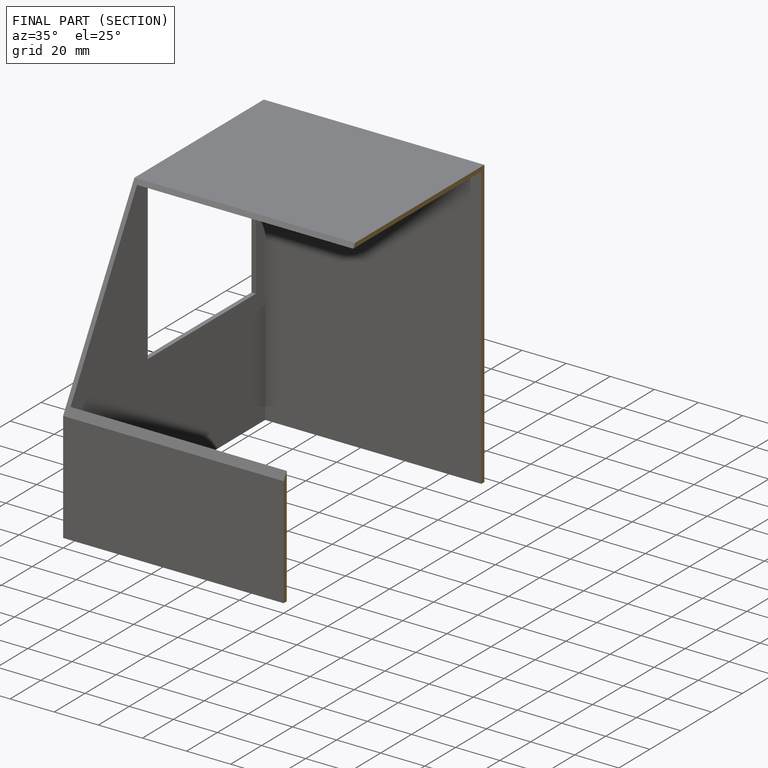
[diagram: finished part — half-section view (interior)]
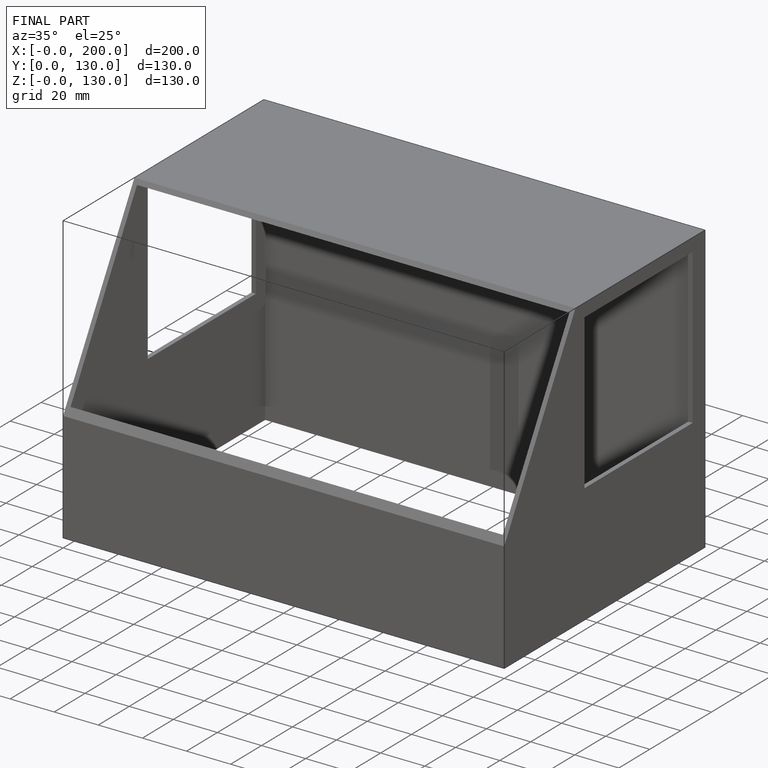
[diagram: finished part — iso view with bounding-box wireframe]
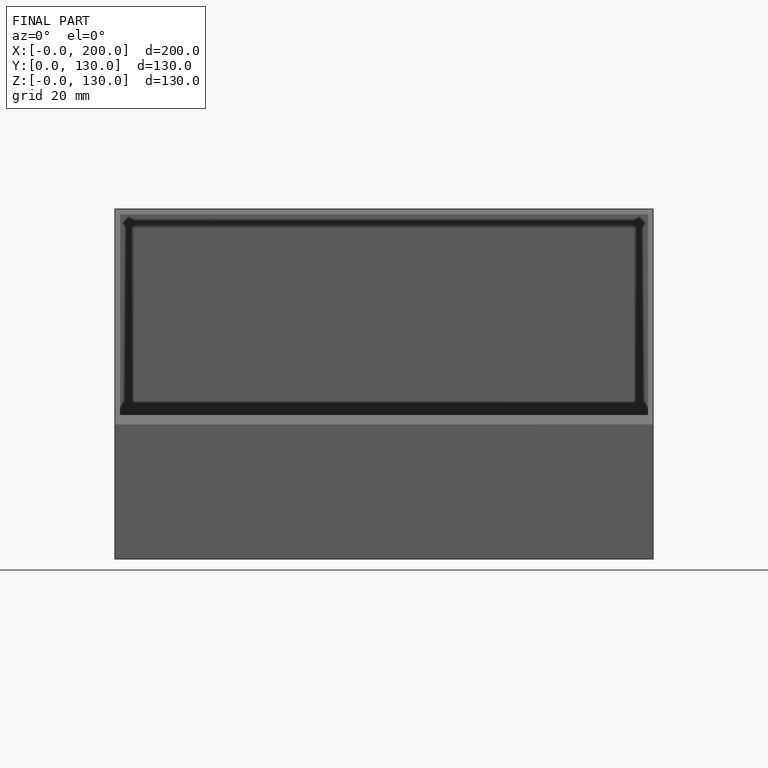
[diagram: finished part — front view with bounding-box wireframe]
